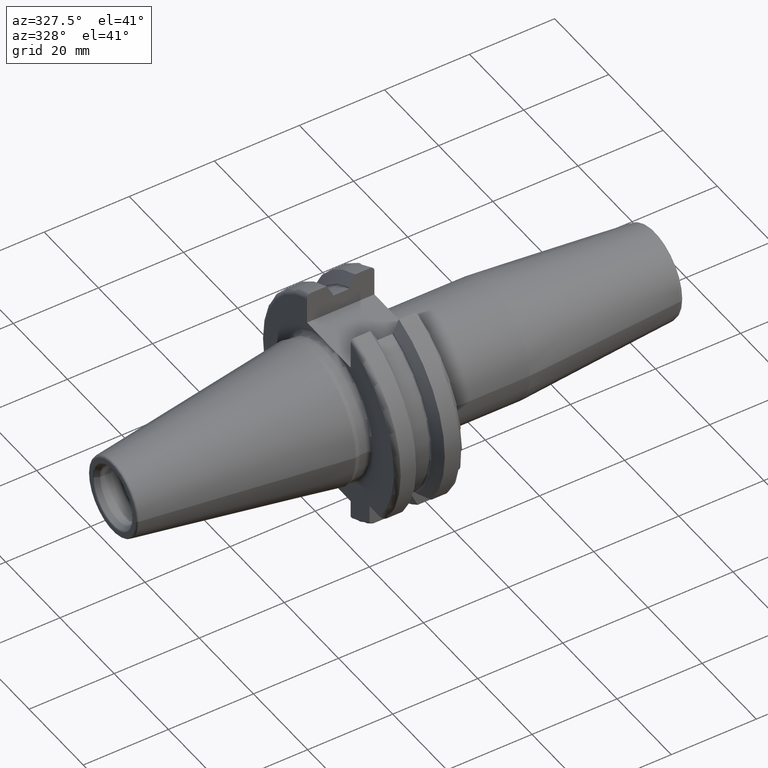
[diagram: clean part render]
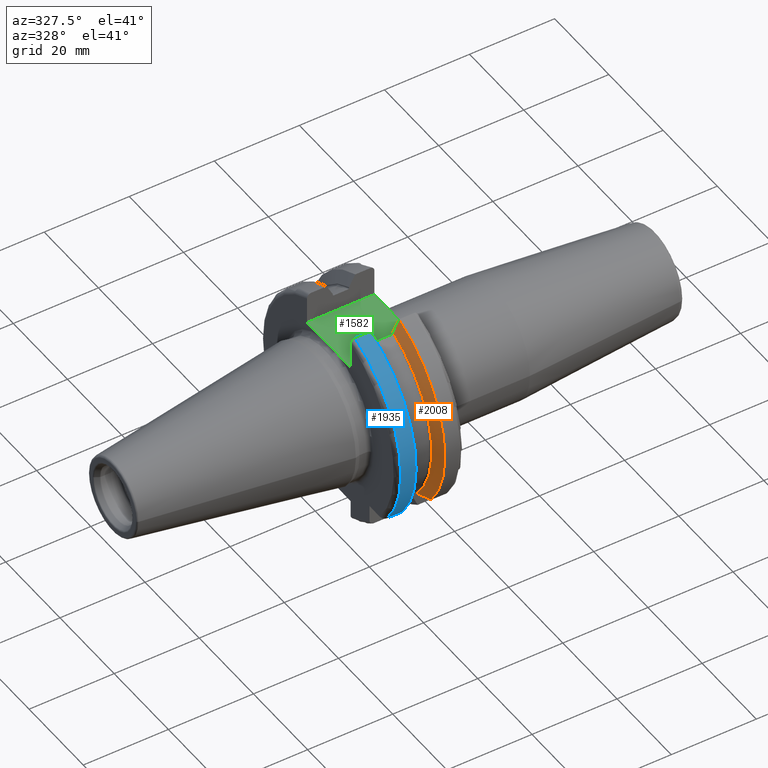
[diagram: same view with three faces highlighted in distinct colors, each labeled with its STEP entity id]
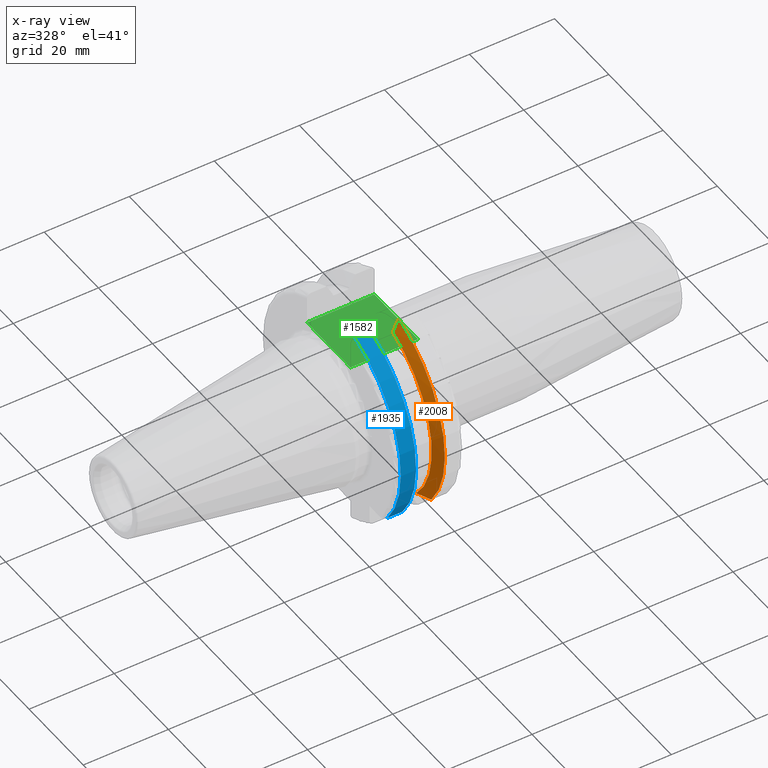
[diagram: x-ray of the same camera — body ghosted, the three highlighted faces saturated]
A machine part, auxiliary view with three faces highlighted in distinct colors.
The next image is the same camera in x-ray (body ghosted, the three faces saturated) — at least one of them is partly hidden behind the body in this view.
Their STEP definitions:

[orange] entity #2008 — the highlighted conical surface has half-angle 60 deg.
#415=CARTESIAN_POINT('',(1.454672557207E1,0.E0,0.E0));
#416=DIRECTION('',(-1.E0,0.E0,0.E0));
#417=DIRECTION('',(0.E0,-7.998198716635E-1,-6.002400960384E-1));
#418=AXIS2_PLACEMENT_3D('',#415,#416,#417);
#469=CARTESIAN_POINT('',(1.454672557207E1,-1.998749859287E1,-1.5E1));
#470=CARTESIAN_POINT('',(1.436889087574E1,-1.960238846957E1,-1.5E1));
#471=CARTESIAN_POINT('',(1.402372584659E1,-1.884688509238E1,-1.5E1));
#472=CARTESIAN_POINT('',(1.353784589592E1,-1.775879937320E1,-1.5E1));
#473=CARTESIAN_POINT('',(1.323420762196E1,-1.706160176959E1,-1.5E1));
#474=CARTESIAN_POINT('',(1.30875E1,-1.672022802897E1,-1.5E1));
#476=CARTESIAN_POINT('',(1.30875E1,0.E0,0.E0));
#477=DIRECTION('',(-1.E0,0.E0,0.E0));
#478=DIRECTION('',(0.E0,-7.443602857158E-1,-6.677782304397E-1));
#479=AXIS2_PLACEMENT_3D('',#476,#477,#478);
#481=CARTESIAN_POINT('',(1.454672557207E1,-8.05E0,2.365792890344E1));
#482=CARTESIAN_POINT('',(1.437757255744E1,-8.05E0,2.334845081669E1));
#483=CARTESIAN_POINT('',(1.404392615581E1,-8.05E0,2.273675949894E1));
#484=CARTESIAN_POINT('',(1.355756105317E1,-8.05E0,2.184111363646E1));
#485=CARTESIAN_POINT('',(1.324262174894E1,-8.05E0,2.125833411433E1));
#486=CARTESIAN_POINT('',(1.30875E1,-8.05E0,2.097053946232E1));
#1266=CARTESIAN_POINT('',(1.30875E1,-8.05E0,2.097053946232E1));
#1267=VERTEX_POINT('',#1266);
#1274=CARTESIAN_POINT('',(1.30875E1,-1.672022802897E1,-1.5E1));
#1276=VERTEX_POINT('',#1274);
#1278=VERTEX_POINT('',#481);
#1297=VERTEX_POINT('',#469);
#1994=CARTESIAN_POINT('',(1.381711278603E1,0.E0,0.E0));
#1995=DIRECTION('',(1.E0,0.E0,0.E0));
#1996=DIRECTION('',(0.E0,-1.E0,0.E0));
#1997=AXIS2_PLACEMENT_3D('',#1994,#1995,#1996);
#1998=CONICAL_SURFACE('',#1997,2.372627358474E1,6.E1);
#1999=ORIENTED_EDGE('',*,*,#1945,.F.);
#2001=ORIENTED_EDGE('',*,*,#2000,.T.);
#2003=ORIENTED_EDGE('',*,*,#2002,.T.);
#2005=ORIENTED_EDGE('',*,*,#2004,.F.);
#2006=EDGE_LOOP('',(#1999,#2001,#2003,#2005));
#2007=FACE_OUTER_BOUND('',#2006,.F.);
#2008=ADVANCED_FACE('',(#2007),#1998,.T.);
#419=CIRCLE('',#418,2.499E1);
#475=B_SPLINE_CURVE_WITH_KNOTS('',3,(#469,#470,#471,#472,#473,#474),
.UNSPECIFIED.,.F.,.F.,(4,1,1,4),(0.E0,3.333333333333E-1,6.666666666667E-1,1.E0),
.UNSPECIFIED.);
#480=CIRCLE('',#479,2.246254716948E1);
#487=B_SPLINE_CURVE_WITH_KNOTS('',3,(#481,#482,#483,#484,#485,#486),
.UNSPECIFIED.,.F.,.F.,(4,1,1,4),(0.E0,3.333333333333E-1,6.666666666667E-1,1.E0),
.UNSPECIFIED.);
#1945=EDGE_CURVE('',#1297,#1278,#419,.T.);
#2000=EDGE_CURVE('',#1297,#1276,#475,.T.);
#2002=EDGE_CURVE('',#1276,#1267,#480,.T.);
#2004=EDGE_CURVE('',#1278,#1267,#487,.T.);

[blue] entity #1935 — the highlighted cylindrical surface (partial cylindrical patch) has radius 24.99 mm, axis along (1, 0, 0).
#334=CARTESIAN_POINT('',(7.803274427933E0,-1.998749859287E1,-1.5E1));
#341=CARTESIAN_POINT('',(7.803274427933E0,-8.05E0,2.365792890344E1));
#398=CARTESIAN_POINT('',(7.803274427933E0,0.E0,0.E0));
#399=DIRECTION('',(1.E0,0.E0,0.E0));
#400=DIRECTION('',(0.E0,-3.221288515406E-1,9.466958344712E-1));
#401=AXIS2_PLACEMENT_3D('',#398,#399,#400);
#403=DIRECTION('',(1.E0,0.E0,0.E0));
#404=VECTOR('',#403,3.603274427933E0);
#405=CARTESIAN_POINT('',(4.2E0,-1.998749859287E1,-1.5E1));
#406=LINE('',#405,#404);
#407=DIRECTION('',(1.E0,0.E0,0.E0));
#408=VECTOR('',#407,3.603274427933E0);
#409=CARTESIAN_POINT('',(4.2E0,-8.05E0,2.365792890344E1));
#410=LINE('',#409,#408);
#734=CARTESIAN_POINT('',(4.2E0,0.E0,0.E0));
#735=DIRECTION('',(1.E0,0.E0,0.E0));
#736=DIRECTION('',(0.E0,-3.221288515406E-1,9.466958344712E-1));
#737=AXIS2_PLACEMENT_3D('',#734,#735,#736);
#1280=VERTEX_POINT('',#341);
#1301=VERTEX_POINT('',#334);
#1324=CARTESIAN_POINT('',(4.2E0,-8.05E0,2.365792890344E1));
#1325=VERTEX_POINT('',#1324);
#1370=CARTESIAN_POINT('',(4.2E0,-1.998749859287E1,-1.5E1));
#1371=VERTEX_POINT('',#1370);
#1921=CARTESIAN_POINT('',(-5.0985E1,0.E0,0.E0));
#1922=DIRECTION('',(1.E0,0.E0,0.E0));
#1923=DIRECTION('',(0.E0,-1.E0,0.E0));
#1924=AXIS2_PLACEMENT_3D('',#1921,#1922,#1923);
#1925=CYLINDRICAL_SURFACE('',#1924,2.499E1);
#1926=ORIENTED_EDGE('',*,*,#1873,.T.);
#1928=ORIENTED_EDGE('',*,*,#1927,.F.);
#1930=ORIENTED_EDGE('',*,*,#1929,.F.);
#1932=ORIENTED_EDGE('',*,*,#1931,.T.);
#1933=EDGE_LOOP('',(#1926,#1928,#1930,#1932));
#1934=FACE_OUTER_BOUND('',#1933,.F.);
#1935=ADVANCED_FACE('',(#1934),#1925,.T.);
#402=CIRCLE('',#401,2.499E1);
#738=CIRCLE('',#737,2.499E1);
#1873=EDGE_CURVE('',#1280,#1301,#402,.T.);
#1927=EDGE_CURVE('',#1371,#1301,#406,.T.);
#1929=EDGE_CURVE('',#1325,#1371,#738,.T.);
#1931=EDGE_CURVE('',#1325,#1280,#410,.T.);

[green] entity #1582 — the highlighted planar face has unit normal (0, 0, -1).
#111=CARTESIAN_POINT('',(3.2E0,-2.717650639799E0,1.63E1));
#112=CARTESIAN_POINT('',(3.2E0,-2.458788626584E0,1.63E1));
#113=CARTESIAN_POINT('',(3.194666280862E0,-1.941100283184E0,1.63E1));
#114=CARTESIAN_POINT('',(3.182373208918E0,-1.164688386608E0,1.63E1));
#115=CARTESIAN_POINT('',(3.174023169169E0,-3.882555189853E-1,1.63E1));
#116=CARTESIAN_POINT('',(3.174022963008E0,3.882236917262E-1,1.63E1));
#117=CARTESIAN_POINT('',(3.182372846860E0,1.164665256250E0,1.63E1));
#118=CARTESIAN_POINT('',(3.194666145228E0,1.941090041629E0,1.63E1));
#119=CARTESIAN_POINT('',(3.2E0,2.458785249288E0,1.63E1));
#120=CARTESIAN_POINT('',(3.2E0,2.717650639799E0,1.63E1));
#132=DIRECTION('',(-1.E0,0.E0,0.E0));
#133=VECTOR('',#132,1.585E1);
#134=CARTESIAN_POINT('',(1.905E1,-8.05E0,1.63E1));
#135=LINE('',#134,#133);
#160=DIRECTION('',(0.E0,1.E0,0.E0));
#161=VECTOR('',#160,1.61E1);
#162=CARTESIAN_POINT('',(1.905E1,-8.05E0,1.63E1));
#163=LINE('',#162,#161);
#536=DIRECTION('',(-1.E0,0.E0,0.E0));
#537=VECTOR('',#536,1.585E1);
#538=CARTESIAN_POINT('',(1.905E1,8.05E0,1.63E1));
#539=LINE('',#538,#537);
#805=DIRECTION('',(0.E0,1.E0,0.E0));
#806=VECTOR('',#805,5.332349360201E0);
#807=CARTESIAN_POINT('',(3.2E0,2.717650639799E0,1.63E1));
#808=LINE('',#807,#806);
#809=DIRECTION('',(0.E0,1.E0,0.E0));
#810=VECTOR('',#809,5.332349360201E0);
#811=CARTESIAN_POINT('',(3.2E0,-8.05E0,1.63E1));
#812=LINE('',#811,#810);
#1311=CARTESIAN_POINT('',(1.905E1,-8.05E0,1.63E1));
#1313=VERTEX_POINT('',#1311);
#1314=CARTESIAN_POINT('',(1.905E1,8.05E0,1.63E1));
#1315=VERTEX_POINT('',#1314);
#1341=CARTESIAN_POINT('',(3.2E0,-8.05E0,1.63E1));
#1343=VERTEX_POINT('',#1341);
#1344=CARTESIAN_POINT('',(3.2E0,-2.717650639799E0,1.63E1));
#1345=VERTEX_POINT('',#1344);
#1346=CARTESIAN_POINT('',(3.2E0,2.717650639799E0,1.63E1));
#1347=CARTESIAN_POINT('',(3.2E0,8.05E0,1.63E1));
#1348=VERTEX_POINT('',#1346);
#1349=VERTEX_POINT('',#1347);
#1564=CARTESIAN_POINT('',(1.905E1,-8.05E0,1.63E1));
#1565=DIRECTION('',(0.E0,0.E0,-1.E0));
#1566=DIRECTION('',(0.E0,1.E0,0.E0));
#1567=AXIS2_PLACEMENT_3D('',#1564,#1565,#1566);
#1568=PLANE('',#1567);
#1570=ORIENTED_EDGE('',*,*,#1569,.F.);
#1572=ORIENTED_EDGE('',*,*,#1571,.T.);
#1574=ORIENTED_EDGE('',*,*,#1573,.T.);
#1575=ORIENTED_EDGE('',*,*,#1552,.T.);
#1577=ORIENTED_EDGE('',*,*,#1576,.T.);
#1579=ORIENTED_EDGE('',*,*,#1578,.F.);
#1580=EDGE_LOOP('',(#1570,#1572,#1574,#1575,#1577,#1579));
#1581=FACE_OUTER_BOUND('',#1580,.F.);
#1582=ADVANCED_FACE('',(#1581),#1568,.F.);
#121=B_SPLINE_CURVE_WITH_KNOTS('',3,(#111,#112,#113,#114,#115,#116,#117,#118,
#119,#120),.UNSPECIFIED.,.F.,.F.,(4,1,1,1,1,1,1,4),(0.E0,1.428571428571E-1,
2.857142857143E-1,4.285714285714E-1,5.714285714286E-1,7.142857142857E-1,
8.571428571429E-1,1.E0),.UNSPECIFIED.);
#1552=EDGE_CURVE('',#1345,#1348,#121,.T.);
#1569=EDGE_CURVE('',#1313,#1315,#163,.T.);
#1571=EDGE_CURVE('',#1313,#1343,#135,.T.);
#1573=EDGE_CURVE('',#1343,#1345,#812,.T.);
#1576=EDGE_CURVE('',#1348,#1349,#808,.T.);
#1578=EDGE_CURVE('',#1315,#1349,#539,.T.);